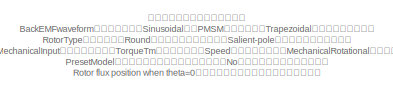
[diagram: root canvas - part 1/3, top center region]
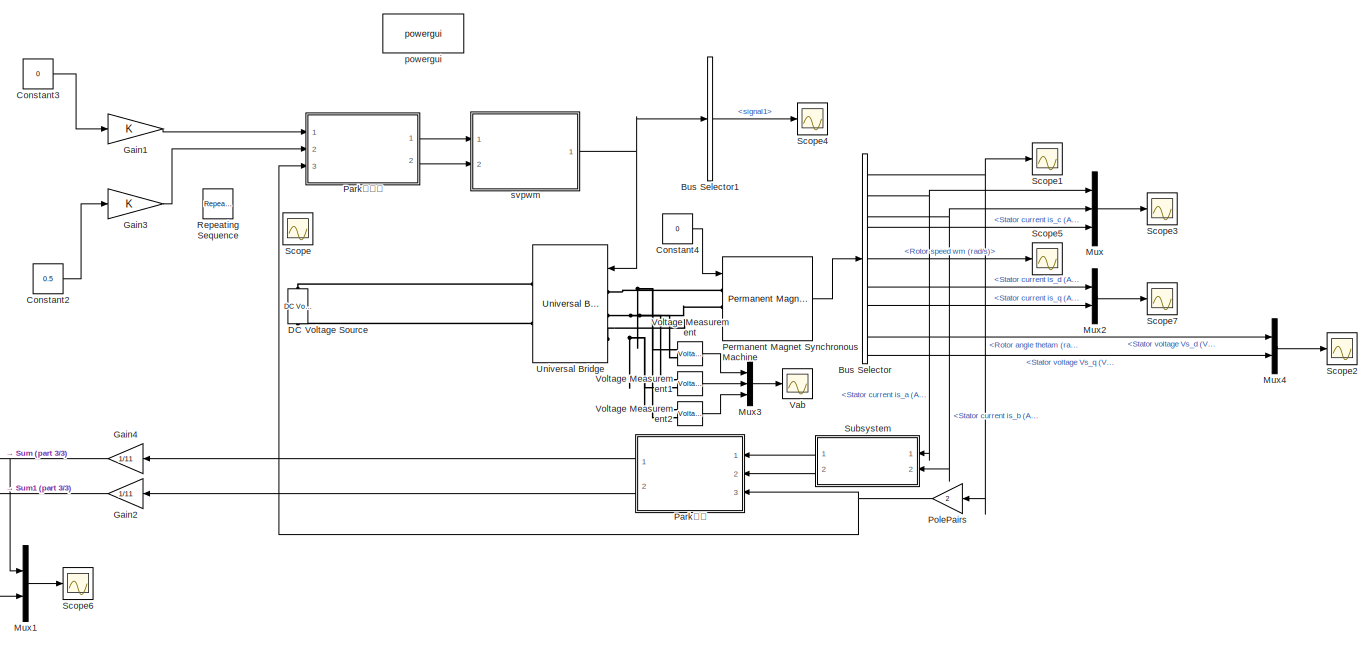
[diagram: root canvas - part 2/3, full width, middle band]
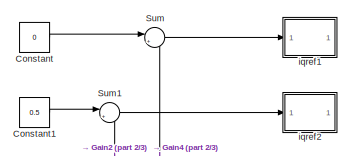
[diagram: root canvas - part 3/3, middle left region]
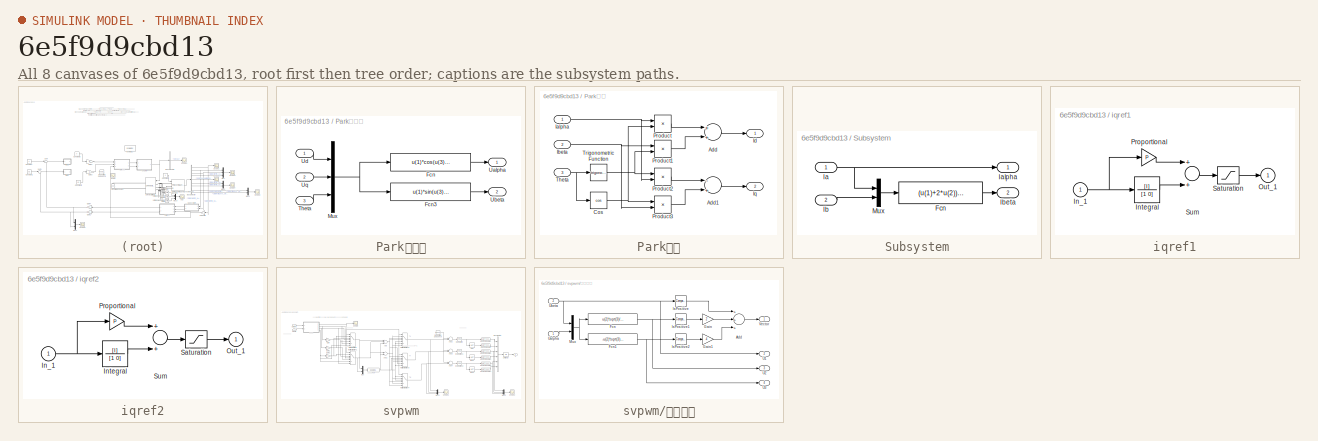
[diagram: thumbnail index - all 8 canvases of the model, root first then tree order]
MODEL slx_6e5f9d9cbd13
KIND model
CONFIG AbsTol = auto
CONFIG EnableMultiTasking = off
CONFIG FixedStep = auto
CONFIG MaxStep = 1e-4
CONFIG MinStep = auto
CONFIG RelTol = 1e-3
CONFIG SampleTimeConstraint = Unconstrained
CONFIG Solver = VariableStepAuto
CONFIG SolverName = VariableStepAuto
CONFIG StartTime = 0.0
CONFIG StopTime = 4.0
BLOCK [BusSelector] Bus Selector
  OutputAsBus = off
  OutputSignals = Rotor angle thetam (rad),Stator current is_a (A),Stator current is_b (A),Stator current is_c (A),Rotor speed wm (rad/s),Stator current is_d (A),Stator current is_q (A),Stator voltage Vs_d (V),Stator voltage Vs_q (V)
  Ports = [1, 9]
BLOCK [BusSelector] Bus Selector1
  OutputAsBus = off
  OutputSignals = signal1
  Ports = [1, 1]
BLOCK [Constant] Constant
  Value = 0
BLOCK [Constant] Constant1
  Value = 0.5
BLOCK [Constant] Constant2
  Value = 0.5
BLOCK [Constant] Constant3
  Value = 0
BLOCK [Constant] Constant4
  Value = 0
BLOCK [Reference] DC Voltage Source  REF=powerlib/Electrical
Sources/DC Voltage Source
  Ports = [0, 0, 0, 0, 0, 1, 1]
  SourceBlock = powerlib/Electrical\nSources/DC Voltage Source
  SourceProductBaseCode = PS
  SourceProductName = Simscape Power Systems
  SourceType = DC Voltage Source
BLOCK [Gain] Gain1
  OutDataTypeStr = Inherit: Inherit via internal rule
  ParamDataTypeStr = Inherit: Inherit via internal rule
  SaturateOnIntegerOverflow = off
BLOCK [Gain] Gain2
  Gain = 1/11
  OutDataTypeStr = Inherit: Inherit via internal rule
  ParamDataTypeStr = Inherit: Inherit via internal rule
  SaturateOnIntegerOverflow = off
BLOCK [Gain] Gain3
  OutDataTypeStr = Inherit: Inherit via internal rule
  ParamDataTypeStr = Inherit: Inherit via internal rule
  SaturateOnIntegerOverflow = off
BLOCK [Gain] Gain4
  Gain = 1/11
  OutDataTypeStr = Inherit: Inherit via internal rule
  ParamDataTypeStr = Inherit: Inherit via internal rule
  SaturateOnIntegerOverflow = off
BLOCK [Mux] Mux
  DisplayOption = bar
  Inputs = 3
  Ports = [3, 1]
BLOCK [Mux] Mux1
  DisplayOption = bar
  Inputs = 2
  Ports = [2, 1]
BLOCK [Mux] Mux2
  DisplayOption = bar
  Inputs = 2
  Ports = [2, 1]
BLOCK [Mux] Mux3
  DisplayOption = bar
  Inputs = 3
  Ports = [3, 1]
BLOCK [Mux] Mux4
  DisplayOption = bar
  Inputs = 2
  Ports = [2, 1]
BLOCK [SubSystem] Park反变换
  Ports = [3, 2]
  RequestExecContextInheritance = off
  Variant = off
BLOCK [Fcn] Park反变换/Fcn
  Expr = u(1)*cos(u(3))-u(2)*sin(u(3))
BLOCK [Fcn] Park反变换/Fcn3
  Expr = u(1)*sin(u(3))+u(2)*cos(u(3))
BLOCK [Mux] Park反变换/Mux
  DisplayOption = bar
  Inputs = 3
  Ports = [3, 1]
BLOCK [Inport] Park反变换/Theta
  IconDisplay = Port number
  Port = 3
BLOCK [Outport] Park反变换/Ualpha
  IconDisplay = Port number
BLOCK [Outport] Park反变换/Ubeta
  IconDisplay = Port number
  Port = 2
BLOCK [Inport] Park反变换/Ud
  IconDisplay = Port number
BLOCK [Inport] Park反变换/Uq
  IconDisplay = Port number
  Port = 2
BLOCK [SubSystem] Park变换
  Ports = [3, 2]
  RequestExecContextInheritance = off
  Variant = off
BLOCK [Sum] Park变换/Add
  InputSameDT = off
  OutDataTypeStr = Inherit: Inherit via internal rule
  Ports = [2, 1]
  SaturateOnIntegerOverflow = off
BLOCK [Sum] Park变换/Add1
  InputSameDT = off
  Inputs = -+
  OutDataTypeStr = Inherit: Inherit via internal rule
  Ports = [2, 1]
  SaturateOnIntegerOverflow = off
BLOCK [Trigonometry] Park变换/Cos
  Operator = cos
  Ports = [1, 1]
BLOCK [Inport] Park变换/Ialpha
  IconDisplay = Port number
BLOCK [Inport] Park变换/Ibeta
  IconDisplay = Port number
  Port = 2
BLOCK [Outport] Park变换/Id
  IconDisplay = Port number
BLOCK [Outport] Park变换/Iq
  IconDisplay = Port number
  Port = 2
BLOCK [Product] Park变换/Product
  InputSameDT = off
  OutDataTypeStr = Inherit: Inherit via internal rule
  Ports = [2, 1]
  RndMeth = Floor
  SaturateOnIntegerOverflow = off
BLOCK [Product] Park变换/Product1
  InputSameDT = off
  OutDataTypeStr = Inherit: Inherit via internal rule
  Ports = [2, 1]
  RndMeth = Floor
  SaturateOnIntegerOverflow = off
BLOCK [Product] Park变换/Product2
  InputSameDT = off
  OutDataTypeStr = Inherit: Inherit via internal rule
  Ports = [2, 1]
  RndMeth = Floor
  SaturateOnIntegerOverflow = off
BLOCK [Product] Park变换/Product3
  InputSameDT = off
  OutDataTypeStr = Inherit: Inherit via internal rule
  Ports = [2, 1]
  RndMeth = Floor
  SaturateOnIntegerOverflow = off
BLOCK [Inport] Park变换/Theta
  IconDisplay = Port number
  Port = 3
BLOCK [Trigonometry] Park变换/Trigonometric Function
  Ports = [1, 1]
BLOCK [Reference] Permanent Magnet Synchronous Machine  REF=powerlib/Machines/Permanent Magnet
Synchronous Machine
  Ports = [1, 1, 0, 0, 0, 3]
  SourceBlock = powerlib/Machines/Permanent Magnet\nSynchronous Machine
  SourceProductBaseCode = PS
  SourceProductName = Simscape Power Systems
  SourceType = Permanent Magnet Synchronous Machine
BLOCK [Gain] PolePairs 
  Gain = 2
  OutDataTypeStr = Inherit: Inherit via internal rule
  ParamDataTypeStr = Inherit: Inherit via internal rule
  SaturateOnIntegerOverflow = off
BLOCK [Reference] Repeating Sequence  REF=simulink/Sources/Repeating
Sequence
  Ports = [0, 1]
  SourceBlock = simulink/Sources/Repeating\nSequence
  SourceProductBaseCode = SL
  SourceProductName = Simulink
  SourceType = Repeating table
BLOCK [Scope] Scope
  NumInputPorts = 1
  Ports = [1]
  ScopeSpecificationString = Simulink.scopes.TimeScopeBlockCfg('CurrentConfiguration', extmgr.ConfigurationSet(extmgr.Configuration('Core','General UI',true),extmgr.Configuration('Core','Source UI',true),extmgr.Configuration('Sources','WiredSimulink',true,'SampleTime','0.0001'),extmgr.Configuration('Visuals','Time Domain',true,'SerializedDisplays',{struct('MinYLimReal','-0.78524','MaxYLimReal','7.06717','YLabelReal','','MinYL...<+1388ch>
BLOCK [Scope] Scope1
  NumInputPorts = 1
  Ports = [1]
  ScopeSpecificationString = Simulink.scopes.TimeScopeBlockCfg('CurrentConfiguration', extmgr.ConfigurationSet(extmgr.Configuration('Core','General UI',true),extmgr.Configuration('Core','Source UI',true),extmgr.Configuration('Sources','WiredSimulink',true,'DataLoggingVariableName','ScopeData1','SampleTime','0.001'),extmgr.Configuration('Visuals','Time Domain',true,'SerializedDisplays',{struct('MinYLimReal','-0.80551','MaxYLim...<+1479ch>
BLOCK [Scope] Scope2
  NumInputPorts = 1
  Ports = [1]
  ScopeSpecificationString = Simulink.scopes.TimeScopeBlockCfg('CurrentConfiguration', extmgr.ConfigurationSet(extmgr.Configuration('Core','General UI',true),extmgr.Configuration('Core','Source UI',true),extmgr.Configuration('Sources','WiredSimulink',true,'DataLoggingVariableName','ScopeData1','SampleTime','0.0001'),extmgr.Configuration('Visuals','Time Domain',true,'SerializedDisplays',{struct('MinYLimReal','-0.00257','MaxYLi...<+1507ch>
BLOCK [Scope] Scope3
  NumInputPorts = 1
  Ports = [1]
  ScopeSpecificationString = Simulink.scopes.TimeScopeBlockCfg('CurrentConfiguration', extmgr.ConfigurationSet(extmgr.Configuration('Core','General UI',true),extmgr.Configuration('Core','Source UI',true),extmgr.Configuration('Sources','WiredSimulink',true,'DataLoggingVariableName','ScopeData4','SampleTime','0.0001'),extmgr.Configuration('Visuals','Time Domain',true,'SerializedDisplays',{struct('MinYLimReal','-2.29564','MaxYLi...<+1561ch>
BLOCK [Scope] Scope4
  NumInputPorts = 1
  Ports = [1]
  ScopeSpecificationString = Simulink.scopes.TimeScopeBlockCfg('CurrentConfiguration', extmgr.ConfigurationSet(extmgr.Configuration('Core','General UI',true),extmgr.Configuration('Core','Source UI',true),extmgr.Configuration('Sources','WiredSimulink',true,'SampleTime','0.00001','DataLoggingVariableName','ScopeData5'),extmgr.Configuration('Visuals','Time Domain',true,'SerializedDisplays',{struct('MinYLimReal','-0.125','MaxYLim...<+1450ch>
BLOCK [Scope] Scope5
  NumInputPorts = 1
  Ports = [1]
  ScopeSpecificationString = Simulink.scopes.TimeScopeBlockCfg('CurrentConfiguration', extmgr.ConfigurationSet(extmgr.Configuration('Core','General UI',true),extmgr.Configuration('Core','Source UI',true),extmgr.Configuration('Sources','WiredSimulink',true,'DataLoggingVariableName','ScopeData6','SampleTime','0.0001'),extmgr.Configuration('Visuals','Time Domain',true,'SerializedDisplays',{struct('MinYLimReal','-20.24806','MaxYL...<+1482ch>
BLOCK [Scope] Scope6
  NumInputPorts = 1
  Ports = [1]
  ScopeSpecificationString = Simulink.scopes.TimeScopeBlockCfg('CurrentConfiguration', extmgr.ConfigurationSet(extmgr.Configuration('Core','General UI',true),extmgr.Configuration('Core','Source UI',true),extmgr.Configuration('Sources','WiredSimulink',true,'DataLoggingVariableName','ScopeData7'),extmgr.Configuration('Visuals','Time Domain',true,'SerializedDisplays',{struct('MinYLimReal','-0.5888','MaxYLimReal','1.30678','YLabe...<+1470ch>
BLOCK [Scope] Scope7
  NumInputPorts = 1
  Ports = [1]
  ScopeSpecificationString = Simulink.scopes.TimeScopeBlockCfg('CurrentConfiguration', extmgr.ConfigurationSet(extmgr.Configuration('Core','General UI',true),extmgr.Configuration('Core','Source UI',true),extmgr.Configuration('Sources','WiredSimulink',true,'DataLoggingVariableName','ScopeData8','SampleTime','0.0001'),extmgr.Configuration('Visuals','Time Domain',true,'SerializedDisplays',{struct('MinYLimReal','-13.89154','MaxYL...<+1513ch>
BLOCK [SubSystem] Subsystem
  Ports = [2, 2]
  RequestExecContextInheritance = off
  Variant = off
BLOCK [Fcn] Subsystem/Fcn
  Expr = (u(1)+2*u(2))*sqrt(3)/3
BLOCK [Inport] Subsystem/Ia
  IconDisplay = Port number
BLOCK [Outport] Subsystem/Ialpha
  IconDisplay = Port number
BLOCK [Inport] Subsystem/Ib
  IconDisplay = Port number
  Port = 2
BLOCK [Outport] Subsystem/Ibeta 
  IconDisplay = Port number
  Port = 2
BLOCK [Mux] Subsystem/Mux
  DisplayOption = bar
  Inputs = 2
  Ports = [2, 1]
BLOCK [Sum] Sum
  IconShape = round
  InputSameDT = off
  Inputs = |+-
  OutDataTypeStr = Inherit: Inherit via internal rule
  Ports = [2, 1]
  SaturateOnIntegerOverflow = off
BLOCK [Sum] Sum1
  IconShape = round
  InputSameDT = off
  Inputs = |+-
  OutDataTypeStr = Inherit: Inherit via internal rule
  Ports = [2, 1]
  SaturateOnIntegerOverflow = off
BLOCK [Reference] Universal Bridge  REF=powerlib/Power
Electronics/Universal Bridge
  Ports = [1, 0, 0, 0, 0, 3, 2]
  SourceBlock = powerlib/Power\nElectronics/Universal Bridge
  SourceProductBaseCode = PS
  SourceProductName = Simscape Power Systems
  SourceType = Universal Bridge
BLOCK [Scope] Vab
  NumInputPorts = 1
  Ports = [1]
  ScopeSpecificationString = Simulink.scopes.TimeScopeBlockCfg('CurrentConfiguration', extmgr.ConfigurationSet(extmgr.Configuration('Core','General UI',true),extmgr.Configuration('Core','Source UI',true),extmgr.Configuration('Sources','WiredSimulink',true,'DataLoggingVariableName','ScopeData2','DataLoggingSaveFormat','Structure','DataLoggingDecimation','1','DataLoggingDecimateData',true,'SampleTime','0.011'),extmgr.Configurat...<+1853ch>
BLOCK [Reference] Voltage Measurement  REF=powerlib/Measurements/Voltage Measurement
  Ports = [0, 1, 0, 0, 0, 2]
  SourceBlock = powerlib/Measurements/Voltage Measurement
  SourceProductBaseCode = PS
  SourceProductName = Simscape Electrical
  SourceType = Voltage Measurement
BLOCK [Reference] Voltage Measurement1  REF=powerlib/Measurements/Voltage Measurement
  Ports = [0, 1, 0, 0, 0, 2]
  SourceBlock = powerlib/Measurements/Voltage Measurement
  SourceProductBaseCode = PS
  SourceProductName = Simscape Electrical
  SourceType = Voltage Measurement
BLOCK [Reference] Voltage Measurement2  REF=powerlib/Measurements/Voltage Measurement
  Ports = [0, 1, 0, 0, 0, 2]
  SourceBlock = powerlib/Measurements/Voltage Measurement
  SourceProductBaseCode = PS
  SourceProductName = Simscape Electrical
  SourceType = Voltage Measurement
BLOCK [SubSystem] iqref1
  Ports = [1, 1]
  RequestExecContextInheritance = off
  Variant = off
BLOCK [Inport] iqref1/In_1
  IconDisplay = Port number
BLOCK [TransferFcn] iqref1/Integral
  Denominator = [1 0]
  Numerator = [I]
BLOCK [Outport] iqref1/Out_1
  IconDisplay = Port number
  InitialOutput = 0
BLOCK [Gain] iqref1/Proportional
  Gain = P
BLOCK [Saturate] iqref1/Saturation
  InputPortMap = u0
  LowerLimit = min
  Ports = [1, 1]
  UpperLimit = max
BLOCK [Sum] iqref1/Sum
  Ports = [2, 1]
BLOCK [SubSystem] iqref2
  Ports = [1, 1]
  RequestExecContextInheritance = off
  Variant = off
BLOCK [Inport] iqref2/In_1
  IconDisplay = Port number
BLOCK [TransferFcn] iqref2/Integral
  Denominator = [1 0]
  Numerator = [I]
BLOCK [Outport] iqref2/Out_1
  IconDisplay = Port number
  InitialOutput = 0
BLOCK [Gain] iqref2/Proportional
  Gain = P
BLOCK [Saturate] iqref2/Saturation
  InputPortMap = u0
  LowerLimit = min
  Ports = [1, 1]
  UpperLimit = max
BLOCK [Sum] iqref2/Sum
  Ports = [2, 1]
BLOCK [Reference] powergui  REF=powerlib/powergui
  Ports = []
  Priority = 1
  SourceBlock = powerlib/powergui
  SourceProductBaseCode = PS
  SourceProductName = Simscape Power Systems
  SourceType = PSB option menu block
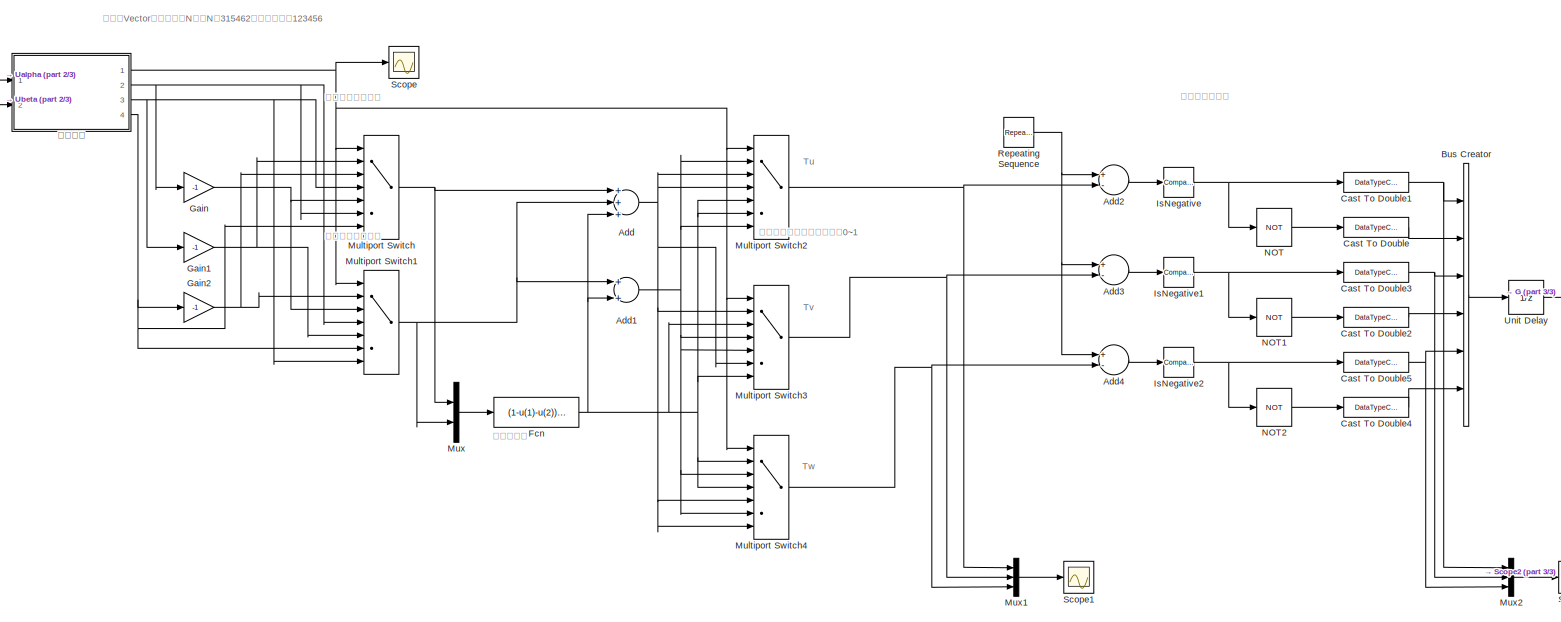
[diagram: svpwm - part 1/3, most of the canvas]
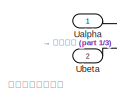
[diagram: svpwm - part 2/3, top left region]
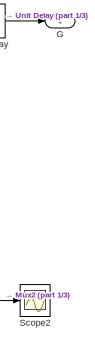
[diagram: svpwm - part 3/3, bottom right region]
BLOCK [SubSystem] svpwm
  Ports = [2, 1]
  RequestExecContextInheritance = off
  Variant = off
BLOCK [Sum] svpwm/Add
  InputSameDT = off
  Inputs = +++
  OutDataTypeStr = Inherit: Inherit via internal rule
  Ports = [3, 1]
  SaturateOnIntegerOverflow = off
BLOCK [Sum] svpwm/Add1
  InputSameDT = off
  OutDataTypeStr = Inherit: Inherit via internal rule
  Ports = [2, 1]
  SaturateOnIntegerOverflow = off
BLOCK [Sum] svpwm/Add2
  InputSameDT = off
  Inputs = +-
  OutDataTypeStr = Inherit: Inherit via internal rule
  Ports = [2, 1]
  SaturateOnIntegerOverflow = off
BLOCK [Sum] svpwm/Add3
  InputSameDT = off
  Inputs = +-
  OutDataTypeStr = Inherit: Inherit via internal rule
  Ports = [2, 1]
  SaturateOnIntegerOverflow = off
BLOCK [Sum] svpwm/Add4
  InputSameDT = off
  Inputs = +-
  OutDataTypeStr = Inherit: Inherit via internal rule
  Ports = [2, 1]
  SaturateOnIntegerOverflow = off
BLOCK [BusCreator] svpwm/Bus Creator
  DisplayOption = bar
  InheritFromInputs = on
  Inputs = 6
  Ports = [6, 1]
BLOCK [DataTypeConversion] svpwm/Cast To Double
  OutDataTypeStr = double
  RndMeth = Floor
  SaturateOnIntegerOverflow = off
BLOCK [DataTypeConversion] svpwm/Cast To Double1
  OutDataTypeStr = double
  RndMeth = Floor
  SaturateOnIntegerOverflow = off
BLOCK [DataTypeConversion] svpwm/Cast To Double2
  OutDataTypeStr = double
  RndMeth = Floor
  SaturateOnIntegerOverflow = off
BLOCK [DataTypeConversion] svpwm/Cast To Double3
  OutDataTypeStr = double
  RndMeth = Floor
  SaturateOnIntegerOverflow = off
BLOCK [DataTypeConversion] svpwm/Cast To Double4
  OutDataTypeStr = double
  RndMeth = Floor
  SaturateOnIntegerOverflow = off
BLOCK [DataTypeConversion] svpwm/Cast To Double5
  OutDataTypeStr = double
  RndMeth = Floor
  SaturateOnIntegerOverflow = off
BLOCK [Fcn] svpwm/Fcn
  Expr = (1-u(1)-u(2))*0.5
BLOCK [Outport] svpwm/G
  IconDisplay = Port number
BLOCK [Gain] svpwm/Gain
  Gain = -1
  OutDataTypeStr = Inherit: Inherit via internal rule
  ParamDataTypeStr = Inherit: Inherit via internal rule
  SaturateOnIntegerOverflow = off
BLOCK [Gain] svpwm/Gain1
  Gain = -1
  OutDataTypeStr = Inherit: Inherit via internal rule
  ParamDataTypeStr = Inherit: Inherit via internal rule
  SaturateOnIntegerOverflow = off
BLOCK [Gain] svpwm/Gain2
  Gain = -1
  OutDataTypeStr = Inherit: Inherit via internal rule
  ParamDataTypeStr = Inherit: Inherit via internal rule
  SaturateOnIntegerOverflow = off
BLOCK [Reference] svpwm/IsNegative  REF=simulink/Logic and Bit
Operations/Compare
To Zero
  Ports = [1, 1]
  SourceBlock = simulink/Logic and Bit\nOperations/Compare\nTo Zero
  SourceProductBaseCode = SL
  SourceProductName = Simulink
  SourceType = Compare To Zero
BLOCK [Reference] svpwm/IsNegative1  REF=simulink/Logic and Bit
Operations/Compare
To Zero
  Ports = [1, 1]
  SourceBlock = simulink/Logic and Bit\nOperations/Compare\nTo Zero
  SourceProductBaseCode = SL
  SourceProductName = Simulink
  SourceType = Compare To Zero
BLOCK [Reference] svpwm/IsNegative2  REF=simulink/Logic and Bit
Operations/Compare
To Zero
  Ports = [1, 1]
  SourceBlock = simulink/Logic and Bit\nOperations/Compare\nTo Zero
  SourceProductBaseCode = SL
  SourceProductName = Simulink
  SourceType = Compare To Zero
BLOCK [MultiPortSwitch] svpwm/Multiport Switch
  InputSameDT = off
  Inputs = 6
  Ports = [7, 1]
  SaturateOnIntegerOverflow = off
BLOCK [MultiPortSwitch] svpwm/Multiport Switch1
  InputSameDT = off
  Inputs = 6
  Ports = [7, 1]
  SaturateOnIntegerOverflow = off
BLOCK [MultiPortSwitch] svpwm/Multiport Switch2
  InputSameDT = off
  Inputs = 6
  Ports = [7, 1]
  SaturateOnIntegerOverflow = off
BLOCK [MultiPortSwitch] svpwm/Multiport Switch3
  InputSameDT = off
  Inputs = 6
  Ports = [7, 1]
  SaturateOnIntegerOverflow = off
BLOCK [MultiPortSwitch] svpwm/Multiport Switch4
  InputSameDT = off
  Inputs = 6
  Ports = [7, 1]
  SaturateOnIntegerOverflow = off
BLOCK [Mux] svpwm/Mux
  DisplayOption = bar
  Inputs = 2
  Ports = [2, 1]
BLOCK [Mux] svpwm/Mux1
  DisplayOption = bar
  Inputs = 3
  Ports = [3, 1]
BLOCK [Mux] svpwm/Mux2
  DisplayOption = bar
  Inputs = 3
  Ports = [3, 1]
BLOCK [Logic] svpwm/NOT
  AllPortsSameDT = off
  IconShape = distinctive
  Operator = NOT
  OutDataTypeStr = boolean
  Ports = [1, 1]
BLOCK [Logic] svpwm/NOT1
  AllPortsSameDT = off
  IconShape = distinctive
  Operator = NOT
  OutDataTypeStr = boolean
  Ports = [1, 1]
BLOCK [Logic] svpwm/NOT2
  AllPortsSameDT = off
  IconShape = distinctive
  Operator = NOT
  OutDataTypeStr = boolean
  Ports = [1, 1]
BLOCK [Reference] svpwm/Repeating Sequence  REF=simulink/Sources/Repeating
Sequence
  Ports = [0, 1]
  SourceBlock = simulink/Sources/Repeating\nSequence
  SourceProductBaseCode = SL
  SourceProductName = Simulink
  SourceType = Repeating table
BLOCK [Scope] svpwm/Scope
  NumInputPorts = 1
  Ports = [1]
  ScopeSpecificationString = Simulink.scopes.TimeScopeBlockCfg('CurrentConfiguration', extmgr.ConfigurationSet(extmgr.Configuration('Core','General UI',true),extmgr.Configuration('Core','Source UI',true),extmgr.Configuration('Sources','WiredSimulink',true,'DataLoggingVariableName','ScopeData1'),extmgr.Configuration('Visuals','Time Domain',true,'SerializedDisplays',{struct('MinYLimReal','0.375','MaxYLimReal','6.36031','YLabelR...<+1372ch>
BLOCK [Scope] svpwm/Scope1
  NumInputPorts = 1
  Ports = [1]
  ScopeSpecificationString = Simulink.scopes.TimeScopeBlockCfg('CurrentConfiguration', extmgr.ConfigurationSet(extmgr.Configuration('Core','General UI',true),extmgr.Configuration('Core','Source UI',true),extmgr.Configuration('Sources','WiredSimulink',true,'DataLoggingVariableName','ScopeData1'),extmgr.Configuration('Visuals','Time Domain',true,'SerializedDisplays',{struct('MinYLimReal','0.28075','MaxYLimReal','0.71925','YLabe...<+1458ch>
BLOCK [Scope] svpwm/Scope2
  NumInputPorts = 1
  Ports = [1]
  ScopeSpecificationString = Simulink.scopes.TimeScopeBlockCfg('CurrentConfiguration', extmgr.ConfigurationSet(extmgr.Configuration('Core','General UI',true),extmgr.Configuration('Core','Source UI',true),extmgr.Configuration('Sources','WiredSimulink',true,'DataLoggingVariableName','ScopeData2'),extmgr.Configuration('Visuals','Time Domain',true,'SerializedDisplays',{struct('MinYLimReal','-0.07814','MaxYLimReal','1.05238','YLab...<+1454ch>
BLOCK [Inport] svpwm/Ualpha
  IconDisplay = Port number
BLOCK [Inport] svpwm/Ubeta
  IconDisplay = Port number
  Port = 2
BLOCK [UnitDelay] svpwm/Unit Delay
  InputProcessing = Elements as channels (sample based)
  SampleTime = -1
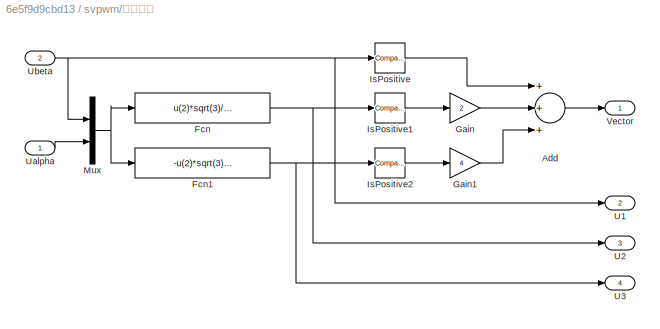
BLOCK [SubSystem] svpwm/扇区判断
  Ports = [2, 4]
  RequestExecContextInheritance = off
  Variant = off
BLOCK [Sum] svpwm/扇区判断/Add
  InputSameDT = off
  Inputs = +++
  OutDataTypeStr = Inherit: Inherit via internal rule
  Ports = [3, 1]
  SaturateOnIntegerOverflow = off
BLOCK [Fcn] svpwm/扇区判断/Fcn
  Expr = u(2)*sqrt(3)/2-u(1)/2
BLOCK [Fcn] svpwm/扇区判断/Fcn1
  Expr = -u(2)*sqrt(3)/2-u(1)/2
BLOCK [Gain] svpwm/扇区判断/Gain
  Gain = 2
  OutDataTypeStr = Inherit: Inherit via internal rule
  ParamDataTypeStr = Inherit: Inherit via internal rule
  SaturateOnIntegerOverflow = off
BLOCK [Gain] svpwm/扇区判断/Gain1
  Gain = 4
  OutDataTypeStr = Inherit: Inherit via internal rule
  ParamDataTypeStr = Inherit: Inherit via internal rule
  SaturateOnIntegerOverflow = off
BLOCK [Reference] svpwm/扇区判断/IsPositive  REF=simulink/Logic and Bit
Operations/Compare
To Zero
  Ports = [1, 1]
  SourceBlock = simulink/Logic and Bit\nOperations/Compare\nTo Zero
  SourceProductBaseCode = SL
  SourceProductName = Simulink
  SourceType = Compare To Zero
BLOCK [Reference] svpwm/扇区判断/IsPositive1  REF=simulink/Logic and Bit
Operations/Compare
To Zero
  Ports = [1, 1]
  SourceBlock = simulink/Logic and Bit\nOperations/Compare\nTo Zero
  SourceProductBaseCode = SL
  SourceProductName = Simulink
  SourceType = Compare To Zero
BLOCK [Reference] svpwm/扇区判断/IsPositive2  REF=simulink/Logic and Bit
Operations/Compare
To Zero
  Ports = [1, 1]
  SourceBlock = simulink/Logic and Bit\nOperations/Compare\nTo Zero
  SourceProductBaseCode = SL
  SourceProductName = Simulink
  SourceType = Compare To Zero
BLOCK [Mux] svpwm/扇区判断/Mux
  DisplayOption = bar
  Inputs = 2
  Ports = [2, 1]
BLOCK [Outport] svpwm/扇区判断/U1
  IconDisplay = Port number
  Port = 2
BLOCK [Outport] svpwm/扇区判断/U2
  IconDisplay = Port number
  Port = 3
BLOCK [Outport] svpwm/扇区判断/U3
  IconDisplay = Port number
  Port = 4
BLOCK [Inport] svpwm/扇区判断/Ualpha
  IconDisplay = Port number
BLOCK [Inport] svpwm/扇区判断/Ubeta
  IconDisplay = Port number
  Port = 2
BLOCK [Outport] svpwm/扇区判断/Vector
  IconDisplay = Port number
ANNOTATION (root): 在电机模型中有如下设置参数： BackEMFwaveform：反电势波形，Sinusoidal表示PMSM为正弦激励，Trapezoidal表示为梯形波激励。 RotorType：转子类型，Round表示电机转子为圆柱形，Salient-pole表示电机转子为凸极型。 MechanicalInput：机械输入方式，TorqueTm表示负载转矩，Speed表示机械角速度，MechanicalRotational不常用。 PresetModel：电机类型，可选的功率等级电机，No时可以对电机参数自行修改。 Rotor flux position when theta=0：此处用来设置同步旋转坐标系的选择。 当选择Aligned with phase A axis（original Park）时，表示同步旋转坐标系采用的是前面所讲的书本上常用坐标系（见图1-2）； 当选择90degrees be...<+70ch>
ANNOTATION svpwm: Tu
ANNOTATION svpwm: Tv
ANNOTATION svpwm: Tw
ANNOTATION svpwm: 占空比转为脉冲
ANNOTATION svpwm: 第一非零矢量时间
ANNOTATION svpwm: 第二非零矢量时间
ANNOTATION svpwm: 这里的Vector为扇区代号N，即N为315462分别代表扇区123456
ANNOTATION svpwm: 这里输入为标幺值
ANNOTATION svpwm: 这里输出的占空比为标幺值0~1
ANNOTATION svpwm: 零矢量时间
LINE Bus Selector1:1 -> Scope4:1
NET Bus Selector:1 -> PolePairs :1, Scope1:1
NET Bus Selector:2 -> Mux:1, Subsystem:1
NET Bus Selector:3 -> Mux:2, Subsystem:2
LINE Bus Selector:4 -> Mux:3
LINE Bus Selector:5 -> Scope5:1
LINE Bus Selector:6 -> Mux2:1
LINE Bus Selector:7 -> Mux2:2
LINE Bus Selector:8 -> Mux4:1
LINE Bus Selector:9 -> Mux4:2
LINE Constant1:1 -> Sum1:1
LINE Constant2:1 -> Gain3:1
LINE Constant3:1 -> Gain1:1
LINE Constant4:1 -> Permanent Magnet Synchronous Machine:1
LINE Constant:1 -> Sum:1
LINE Gain1:1 -> Park反变换:1
NET Gain2:1 -> Mux1:2, Sum1:2
LINE Gain3:1 -> Park反变换:2
NET Gain4:1 -> Mux1:1, Sum:2
LINE Mux1:1 -> Scope6:1
LINE Mux2:1 -> Scope7:1
LINE Mux3:1 -> Vab:1
LINE Mux4:1 -> Scope2:1
LINE Mux:1 -> Scope3:1
LINE Park反变换/Fcn3:1 -> Park反变换/Ubeta:1
LINE Park反变换/Fcn:1 -> Park反变换/Ualpha:1
NET Park反变换/Mux:1 -> Park反变换/Fcn3:1, Park反变换/Fcn:1
LINE Park反变换/Theta:1 -> Park反变换/Mux:3
LINE Park反变换/Ud:1 -> Park反变换/Mux:1
LINE Park反变换/Uq:1 -> Park反变换/Mux:2
LINE Park反变换:1 -> svpwm:1
LINE Park反变换:2 -> svpwm:2
LINE Park变换/Add1:1 -> Park变换/Iq:1
LINE Park变换/Add:1 -> Park变换/Id:1
NET Park变换/Cos:1 -> Park变换/Product3:1, Park变换/Product:2
NET Park变换/Ialpha:1 -> Park变换/Product2:2, Park变换/Product:1
NET Park变换/Ibeta:1 -> Park变换/Product1:1, Park变换/Product3:2
LINE Park变换/Product1:1 -> Park变换/Add:2
LINE Park变换/Product2:1 -> Park变换/Add1:1
LINE Park变换/Product3:1 -> Park变换/Add1:2
LINE Park变换/Product:1 -> Park变换/Add:1
NET Park变换/Theta:1 -> Park变换/Cos:1, Park变换/Trigonometric Function:1
NET Park变换/Trigonometric Function:1 -> Park变换/Product1:2, Park变换/Product2:1
LINE Park变换:1 -> Gain4:1
LINE Park变换:2 -> Gain2:1
LINE Permanent Magnet Synchronous Machine:1 -> Bus Selector:1
NET PolePairs :1 -> Park反变换:3, Park变换:3
LINE Subsystem/Fcn:1 -> Subsystem/Ibeta :1
NET Subsystem/Ia:1 -> Subsystem/Ialpha:1, Subsystem/Mux:1
LINE Subsystem/Ib:1 -> Subsystem/Mux:2
LINE Subsystem/Mux:1 -> Subsystem/Fcn:1
LINE Subsystem:1 -> Park变换:1
LINE Subsystem:2 -> Park变换:2
LINE Sum1:1 -> iqref2:1
LINE Sum:1 -> iqref1:1
LINE Voltage Measurement1:1 -> Mux3:2
LINE Voltage Measurement2:1 -> Mux3:3
LINE Voltage Measurement:1 -> Mux3:1
NET iqref1/In_1:1 -> iqref1/Integral:1, iqref1/Proportional:1
LINE iqref1/Integral:1 -> iqref1/Sum:2
LINE iqref1/Proportional:1 -> iqref1/Sum:1
LINE iqref1/Saturation:1 -> iqref1/Out_1:1
LINE iqref1/Sum:1 -> iqref1/Saturation:1
NET iqref2/In_1:1 -> iqref2/Integral:1, iqref2/Proportional:1
LINE iqref2/Integral:1 -> iqref2/Sum:2
LINE iqref2/Proportional:1 -> iqref2/Sum:1
LINE iqref2/Saturation:1 -> iqref2/Out_1:1
LINE iqref2/Sum:1 -> iqref2/Saturation:1
NET svpwm/Add1:1 -> svpwm/Multiport Switch2:2, svpwm/Multiport Switch2:7, svpwm/Multiport Switch3:4, svpwm/Multiport Switch3:5, svpwm/Multiport Switch4:3, svpwm/Multiport Switch4:6
LINE svpwm/Add2:1 -> svpwm/IsNegative:1
LINE svpwm/Add3:1 -> svpwm/IsNegative1:1
LINE svpwm/Add4:1 -> svpwm/IsNegative2:1
NET svpwm/Add:1 -> svpwm/Multiport Switch2:3, svpwm/Multiport Switch2:4, svpwm/Multiport Switch3:2, svpwm/Multiport Switch3:6, svpwm/Multiport Switch4:5, svpwm/Multiport Switch4:7
LINE svpwm/Bus Creator:1 -> svpwm/Unit Delay:1
NET svpwm/Cast To Double1:1 -> svpwm/Bus Creator:1, svpwm/Mux2:1
LINE svpwm/Cast To Double2:1 -> svpwm/Bus Creator:4
NET svpwm/Cast To Double3:1 -> svpwm/Bus Creator:3, svpwm/Mux2:2
LINE svpwm/Cast To Double4:1 -> svpwm/Bus Creator:6
NET svpwm/Cast To Double5:1 -> svpwm/Bus Creator:5, svpwm/Mux2:3
LINE svpwm/Cast To Double:1 -> svpwm/Bus Creator:2
NET svpwm/Fcn:1 -> svpwm/Add1:2, svpwm/Add:3, svpwm/Multiport Switch2:5, svpwm/Multiport Switch2:6, svpwm/Multiport Switch3:3, svpwm/Multiport Switch3:7, svpwm/Multiport Switch4:2, svpwm/Multiport Switch4:4
NET svpwm/Gain1:1 -> svpwm/Multiport Switch1:5, svpwm/Multiport Switch:2
NET svpwm/Gain2:1 -> svpwm/Multiport Switch1:2, svpwm/Multiport Switch:3
NET svpwm/Gain:1 -> svpwm/Multiport Switch1:3, svpwm/Multiport Switch:5
NET svpwm/IsNegative1:1 -> svpwm/Cast To Double3:1, svpwm/NOT1:1
NET svpwm/IsNegative2:1 -> svpwm/Cast To Double5:1, svpwm/NOT2:1
NET svpwm/IsNegative:1 -> svpwm/Cast To Double1:1, svpwm/NOT:1
NET svpwm/Multiport Switch1:1 -> svpwm/Add1:1, svpwm/Add:2, svpwm/Mux:2
NET svpwm/Multiport Switch2:1 -> svpwm/Add2:2, svpwm/Mux1:1
NET svpwm/Multiport Switch3:1 -> svpwm/Add3:2, svpwm/Mux1:2
NET svpwm/Multiport Switch4:1 -> svpwm/Add4:2, svpwm/Mux1:3
NET svpwm/Multiport Switch:1 -> svpwm/Add:1, svpwm/Mux:1
LINE svpwm/Mux1:1 -> svpwm/Scope1:1
LINE svpwm/Mux2:1 -> svpwm/Scope2:1
LINE svpwm/Mux:1 -> svpwm/Fcn:1
LINE svpwm/NOT1:1 -> svpwm/Cast To Double2:1
LINE svpwm/NOT2:1 -> svpwm/Cast To Double4:1
LINE svpwm/NOT:1 -> svpwm/Cast To Double:1
NET svpwm/Repeating Sequence:1 -> svpwm/Add2:1, svpwm/Add3:1, svpwm/Add4:1
LINE svpwm/Ualpha:1 -> svpwm/扇区判断:1
LINE svpwm/Ubeta:1 -> svpwm/扇区判断:2
LINE svpwm/Unit Delay:1 -> svpwm/G:1
LINE svpwm/扇区判断/Add:1 -> svpwm/扇区判断/Vector:1
NET svpwm/扇区判断/Fcn1:1 -> svpwm/扇区判断/IsPositive2:1, svpwm/扇区判断/U3:1
NET svpwm/扇区判断/Fcn:1 -> svpwm/扇区判断/IsPositive1:1, svpwm/扇区判断/U2:1
LINE svpwm/扇区判断/Gain1:1 -> svpwm/扇区判断/Add:3
LINE svpwm/扇区判断/Gain:1 -> svpwm/扇区判断/Add:2
LINE svpwm/扇区判断/IsPositive1:1 -> svpwm/扇区判断/Gain:1
LINE svpwm/扇区判断/IsPositive2:1 -> svpwm/扇区判断/Gain1:1
LINE svpwm/扇区判断/IsPositive:1 -> svpwm/扇区判断/Add:1
NET svpwm/扇区判断/Mux:1 -> svpwm/扇区判断/Fcn1:1, svpwm/扇区判断/Fcn:1
LINE svpwm/扇区判断/Ualpha:1 -> svpwm/扇区判断/Mux:2
NET svpwm/扇区判断/Ubeta:1 -> svpwm/扇区判断/IsPositive:1, svpwm/扇区判断/Mux:1, svpwm/扇区判断/U1:1
NET svpwm/扇区判断:1 -> svpwm/Multiport Switch1:1, svpwm/Multiport Switch2:1, svpwm/Multiport Switch3:1, svpwm/Multiport Switch4:1, svpwm/Multiport Switch:1, svpwm/Scope:1
NET svpwm/扇区判断:2 -> svpwm/Gain:1, svpwm/Multiport Switch1:4, svpwm/Multiport Switch:6
NET svpwm/扇区判断:3 -> svpwm/Gain1:1, svpwm/Multiport Switch1:7, svpwm/Multiport Switch:4
NET svpwm/扇区判断:4 -> svpwm/Gain2:1, svpwm/Multiport Switch1:6, svpwm/Multiport Switch:7
NET svpwm:1 -> Bus Selector1:1, Universal Bridge:1
PLINE DC Voltage Source:LConn1 -- Universal Bridge:RConn2
PLINE DC Voltage Source:RConn1 -- Universal Bridge:RConn1
PNET net1: Permanent Magnet Synchronous Machine:LConn1 -- Universal Bridge:LConn1 -- Voltage Measurement2:LConn2 -- Voltage Measurement:LConn1
PNET net2: Permanent Magnet Synchronous Machine:LConn2 -- Universal Bridge:LConn2 -- Voltage Measurement1:LConn1 -- Voltage Measurement:LConn2
PNET net3: Permanent Magnet Synchronous Machine:LConn3 -- Universal Bridge:LConn3 -- Voltage Measurement1:LConn2 -- Voltage Measurement2:LConn1
note: NET lines group one-source signal fan-out (src -> all destinations, sorted); 1:1 wires keep LINE; PNET lines group multi-terminal physical nets as a canonical sorted terminal list (undirected conserving connections); 2-terminal nets keep the pairwise PLINE form
